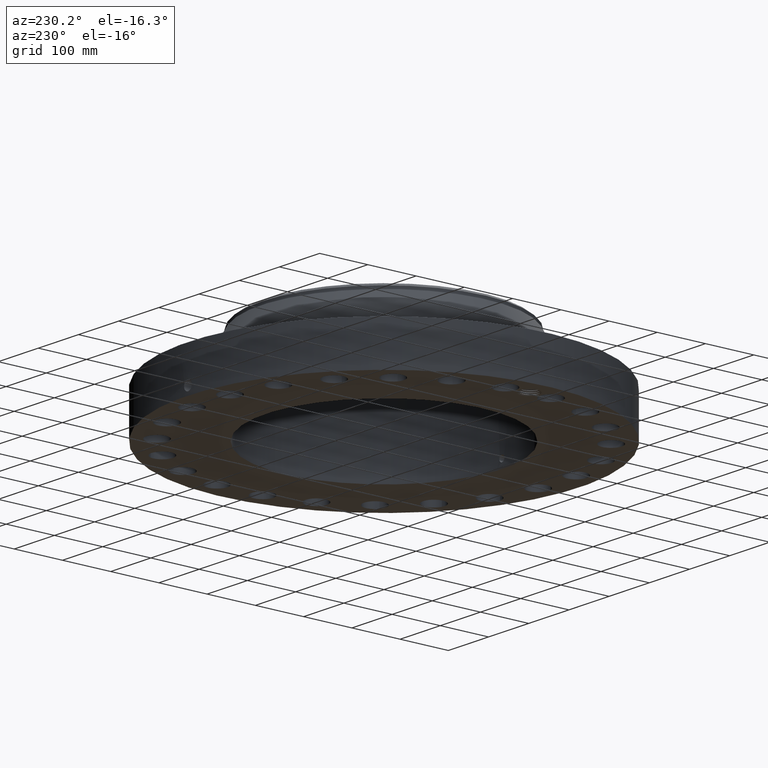
[diagram: clean part render]
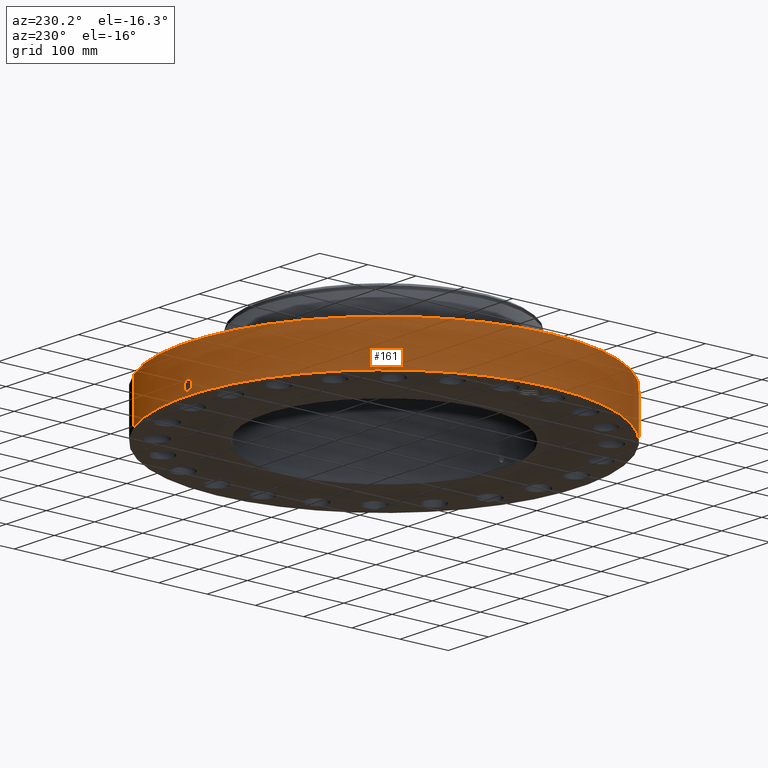
[diagram: same view with one face highlighted and labeled with its STEP entity id]
A machine part, auxiliary view. The second image highlights one B-rep face of the part: STEP entity #161.
In plain terms, the highlighted cylindrical surface (partial cylindrical patch) has radius 406.4 mm, axis along (0, 0, -1).
Its self-contained STEP definition (entity closure, byte-faithful):
#38=AXIS2_PLACEMENT_3D('Cylinder Axis2P3D',#35,#36,#37) ;
#42=AXIS2_PLACEMENT_3D('Circle Axis2P3D',#40,#41,$) ;
#58=AXIS2_PLACEMENT_3D('Circle Axis2P3D',#56,#57,$) ;
#35=CARTESIAN_POINT('Axis2P3D Location',(0.,0.,4.00000000002)) ;
#40=CARTESIAN_POINT('Axis2P3D Location',(0.,0.,0.250000000001)) ;
#44=CARTESIAN_POINT('Vertex',(-7.6708086177,-14.0413209903,0.250000000001)) ;
#46=CARTESIAN_POINT('Vertex',(7.6708086177,14.0413209903,0.250000000001)) ;
#49=CARTESIAN_POINT('Line Origine',(-7.6708086177,-14.0413209903,2.00000000001)) ;
#53=CARTESIAN_POINT('Vertex',(-7.6708086177,-14.0413209903,3.75000000002)) ;
#56=CARTESIAN_POINT('Axis2P3D Location',(0.,0.,3.75000000002)) ;
#60=CARTESIAN_POINT('Vertex',(7.6708086177,14.0413209903,3.75000000002)) ;
#63=CARTESIAN_POINT('Line Origine',(7.6708086177,14.0413209903,2.00000000001)) ;
#75=CARTESIAN_POINT('Control Point',(-0.00071600874176,15.999999984,1.29411846139)) ;
#76=CARTESIAN_POINT('Control Point',(-0.0189155164276,15.9999991696,1.29408170801)) ;
#77=CARTESIAN_POINT('Control Point',(-0.0371118540442,15.9999670595,1.29263810614)) ;
#78=CARTESIAN_POINT('Control Point',(-0.055089279592,15.9999051614,1.28980494183)) ;
#79=CARTESIAN_POINT('Vertex',(-0.000715672610262,15.9999999841,1.29411851063)) ;
#81=CARTESIAN_POINT('Vertex',(-0.0550805829282,15.9999054422,1.2898063303)) ;
#85=CARTESIAN_POINT('Control Point',(-0.0550804883368,15.9999051917,1.28980578611)) ;
#86=CARTESIAN_POINT('Control Point',(-0.0955971581909,15.999765711,1.28541320242)) ;
#87=CARTESIAN_POINT('Control Point',(-0.135483165867,15.9994685853,1.27365431664)) ;
#88=CARTESIAN_POINT('Control Point',(-0.172232896312,15.9990729679,1.2553007981)) ;
#89=CARTESIAN_POINT('Vertex',(-0.172232896312,15.9990729679,1.2553007981)) ;
#93=CARTESIAN_POINT('Control Point',(-0.0310650942398,15.9999698425,0.531193028101)) ;
#94=CARTESIAN_POINT('Control Point',(-0.0962766342597,15.9998432296,0.539443757737)) ;
#95=CARTESIAN_POINT('Control Point',(-0.159435338573,15.9993883705,0.561295185757)) ;
#96=CARTESIAN_POINT('Control Point',(-0.21660479407,15.9986524412,0.59609248719)) ;
#97=CARTESIAN_POINT('Control Point',(-0.292161756311,15.9973970196,0.667062059383)) ;
#98=CARTESIAN_POINT('Control Point',(-0.340748207532,15.9963833295,0.755879254746)) ;
#99=CARTESIAN_POINT('Control Point',(-0.35456591858,15.996075728,0.790101864498)) ;
#100=CARTESIAN_POINT('Control Point',(-0.37513195747,15.9956053359,0.865081019627)) ;
#101=CARTESIAN_POINT('Control Point',(-0.376942950262,15.9955577989,0.942370317035)) ;
#102=CARTESIAN_POINT('Control Point',(-0.372580094396,15.9956631167,0.982943488511)) ;
#103=CARTESIAN_POINT('Control Point',(-0.350060932336,15.9961923162,1.07565849289)) ;
#104=CARTESIAN_POINT('Control Point',(-0.300399964485,15.9972222185,1.15719244925)) ;
#105=CARTESIAN_POINT('Control Point',(-0.263624825997,15.9979099404,1.19825232935)) ;
#106=CARTESIAN_POINT('Control Point',(-0.22011885889,15.9985574669,1.23138562827)) ;
#107=CARTESIAN_POINT('Control Point',(-0.172232896312,15.9990729679,1.2553007981)) ;
#108=CARTESIAN_POINT('Vertex',(-0.0310650942398,15.9999698425,0.531193028101)) ;
#112=CARTESIAN_POINT('Control Point',(-0.0310650942398,15.9999698425,0.531193028101)) ;
#113=CARTESIAN_POINT('Control Point',(-0.0207052656616,15.9999899569,0.530875112117)) ;
#114=CARTESIAN_POINT('Control Point',(-0.0103376885925,16.0000000018,0.530935836227)) ;
#115=CARTESIAN_POINT('Control Point',(2.72878357802E-006,16.0000000001,0.531374667806)) ;
#116=CARTESIAN_POINT('Vertex',(2.72878354254E-006,16.0000000001,0.531374667806)) ;
#120=CARTESIAN_POINT('Control Point',(0.19258388645,15.9988409408,0.587488708577)) ;
#121=CARTESIAN_POINT('Control Point',(0.148989678428,15.9993657002,0.562084850841)) ;
#122=CARTESIAN_POINT('Control Point',(0.101113490473,15.9997843131,0.543795292519)) ;
#123=CARTESIAN_POINT('Control Point',(0.0508045022156,15.9999999914,0.533530615604)) ;
#124=CARTESIAN_POINT('Control Point',(2.72878349276E-006,16.0000000001,0.531374667806)) ;
#125=CARTESIAN_POINT('Vertex',(0.19258388645,15.9988409408,0.587488708577)) ;
#129=CARTESIAN_POINT('Control Point',(0.19258388645,15.9988409408,0.587488708577)) ;
#130=CARTESIAN_POINT('Control Point',(0.249383480551,15.9981572234,0.620587800973)) ;
#131=CARTESIAN_POINT('Control Point',(0.299389087645,15.9973031864,0.665008577398)) ;
#132=CARTESIAN_POINT('Control Point',(0.339452302929,15.996436642,0.7191720189)) ;
#133=CARTESIAN_POINT('Control Point',(0.383556794831,15.9954112314,0.817406896324)) ;
#134=CARTESIAN_POINT('Control Point',(0.392034099285,15.9951951611,0.922688578887)) ;
#135=CARTESIAN_POINT('Control Point',(0.389883010595,15.9952493326,0.962869917646)) ;
#136=CARTESIAN_POINT('Control Point',(0.375666625798,15.9956011081,1.03779256482)) ;
#137=CARTESIAN_POINT('Control Point',(0.343490024841,15.9963246871,1.10623473427)) ;
#138=CARTESIAN_POINT('Control Point',(0.324394516216,15.9967324339,1.1366571374)) ;
#139=CARTESIAN_POINT('Control Point',(0.262721127698,15.9979362186,1.21288482888)) ;
#140=CARTESIAN_POINT('Control Point',(0.179727495454,15.9991319698,1.26573352403)) ;
#141=CARTESIAN_POINT('Control Point',(0.12111833484,15.9997179497,1.28770159128)) ;
#142=CARTESIAN_POINT('Control Point',(0.0600802985985,16.0000000972,1.29709991498)) ;
#143=CARTESIAN_POINT('Control Point',(-2.58579355615E-005,16.,1.2941529843)) ;
#144=CARTESIAN_POINT('Vertex',(-2.58579355473E-005,16.,1.2941529843)) ;
#148=CARTESIAN_POINT('Control Point',(-0.000715672600631,15.9999999841,1.29411851061)) ;
#149=CARTESIAN_POINT('Control Point',(-0.000370789841787,15.9999999995,1.29413607272)) ;
#150=CARTESIAN_POINT('Control Point',(-2.58579404943E-005,16.,1.2941529843)) ;
#36=DIRECTION('Axis2P3D Direction',(0.,0.,-0.0393700787402)) ;
#37=DIRECTION('Axis2P3D XDirection',(0.0188750212049,0.0345504945626,0.)) ;
#41=DIRECTION('Axis2P3D Direction',(0.,0.,-0.0393700787402)) ;
#50=DIRECTION('Vector Direction',(0.,0.,-0.0393700787402)) ;
#57=DIRECTION('Axis2P3D Direction',(0.,0.,-0.0393700787402)) ;
#64=DIRECTION('Vector Direction',(0.,0.,-0.0393700787402)) ;
#51=VECTOR('Line Direction',#50,0.0393700787402) ;
#65=VECTOR('Line Direction',#64,0.0393700787402) ;
#69=ORIENTED_EDGE('',*,*,#48,.F.) ;
#70=ORIENTED_EDGE('',*,*,#55,.T.) ;
#71=ORIENTED_EDGE('',*,*,#62,.T.) ;
#72=ORIENTED_EDGE('',*,*,#67,.F.) ;
#153=ORIENTED_EDGE('',*,*,#83,.T.) ;
#154=ORIENTED_EDGE('',*,*,#91,.T.) ;
#155=ORIENTED_EDGE('',*,*,#110,.F.) ;
#156=ORIENTED_EDGE('',*,*,#118,.T.) ;
#157=ORIENTED_EDGE('',*,*,#127,.F.) ;
#158=ORIENTED_EDGE('',*,*,#146,.T.) ;
#159=ORIENTED_EDGE('',*,*,#151,.F.) ;
#160=FACE_BOUND('',#152,.T.) ;
#161=ADVANCED_FACE('PartBody',(#73,#160),#39,.T.) ;
#74=B_SPLINE_CURVE_WITH_KNOTS('',3,(#75,#76,#77,#78),.UNSPECIFIED.,.F.,.U.,(4,4),(34.6166522717,36.6357147622),.UNSPECIFIED.) ;
#84=B_SPLINE_CURVE_WITH_KNOTS('',3,(#85,#86,#87,#88),.UNSPECIFIED.,.F.,.U.,(4,4),(0.,4.57929650835),.UNSPECIFIED.) ;
#92=B_SPLINE_CURVE_WITH_KNOTS('',5,(#93,#94,#95,#96,#97,#98,#99,#100,#101,#102,#103,#104,#105,#106,#107),.UNSPECIFIED.,.F.,.U.,(6,3,3,3,6),(0.,11.423345016,17.9912535774,25.3436090735,35.2885358984),.UNSPECIFIED.) ;
#111=B_SPLINE_CURVE_WITH_KNOTS('',3,(#112,#113,#114,#115),.UNSPECIFIED.,.F.,.U.,(4,4),(0.,1.08069455748),.UNSPECIFIED.) ;
#119=B_SPLINE_CURVE_WITH_KNOTS('',4,(#120,#121,#122,#123,#124),.UNSPECIFIED.,.F.,.U.,(5,5),(0.,7.07917265102),.UNSPECIFIED.) ;
#128=B_SPLINE_CURVE_WITH_KNOTS('',5,(#129,#130,#131,#132,#133,#134,#135,#136,#137,#138,#139,#140,#141,#142,#143),.UNSPECIFIED.,.F.,.U.,(6,3,3,3,6),(0.,11.5294595556,18.61512978,25.0414153748,36.2765036511),.UNSPECIFIED.) ;
#147=B_SPLINE_CURVE_WITH_KNOTS('',2,(#148,#149,#150),.UNSPECIFIED.,.F.,.U.,(3,3),(1.02033651815,1.04612649208),.UNSPECIFIED.) ;
#43=CIRCLE('generated circle',#42,16.0000000001) ;
#59=CIRCLE('generated circle',#58,16.0000000001) ;
#39=CYLINDRICAL_SURFACE('generated cylinder',#38,16.0000000001) ;
#48=EDGE_CURVE('',#45,#47,#43,.T.) ;
#55=EDGE_CURVE('',#45,#54,#52,.F.) ;
#62=EDGE_CURVE('',#54,#61,#59,.T.) ;
#67=EDGE_CURVE('',#47,#61,#66,.F.) ;
#83=EDGE_CURVE('',#80,#82,#74,.T.) ;
#91=EDGE_CURVE('',#82,#90,#84,.T.) ;
#110=EDGE_CURVE('',#109,#90,#92,.T.) ;
#118=EDGE_CURVE('',#109,#117,#111,.T.) ;
#127=EDGE_CURVE('',#126,#117,#119,.T.) ;
#146=EDGE_CURVE('',#126,#145,#128,.T.) ;
#151=EDGE_CURVE('',#80,#145,#147,.T.) ;
#68=EDGE_LOOP('',(#69,#70,#71,#72)) ;
#152=EDGE_LOOP('',(#153,#154,#155,#156,#157,#158,#159)) ;
#73=FACE_OUTER_BOUND('',#68,.T.) ;
#52=LINE('Line',#49,#51) ;
#66=LINE('Line',#63,#65) ;
#45=VERTEX_POINT('',#44) ;
#47=VERTEX_POINT('',#46) ;
#54=VERTEX_POINT('',#53) ;
#61=VERTEX_POINT('',#60) ;
#80=VERTEX_POINT('',#79) ;
#82=VERTEX_POINT('',#81) ;
#90=VERTEX_POINT('',#89) ;
#109=VERTEX_POINT('',#108) ;
#117=VERTEX_POINT('',#116) ;
#126=VERTEX_POINT('',#125) ;
#145=VERTEX_POINT('',#144) ;